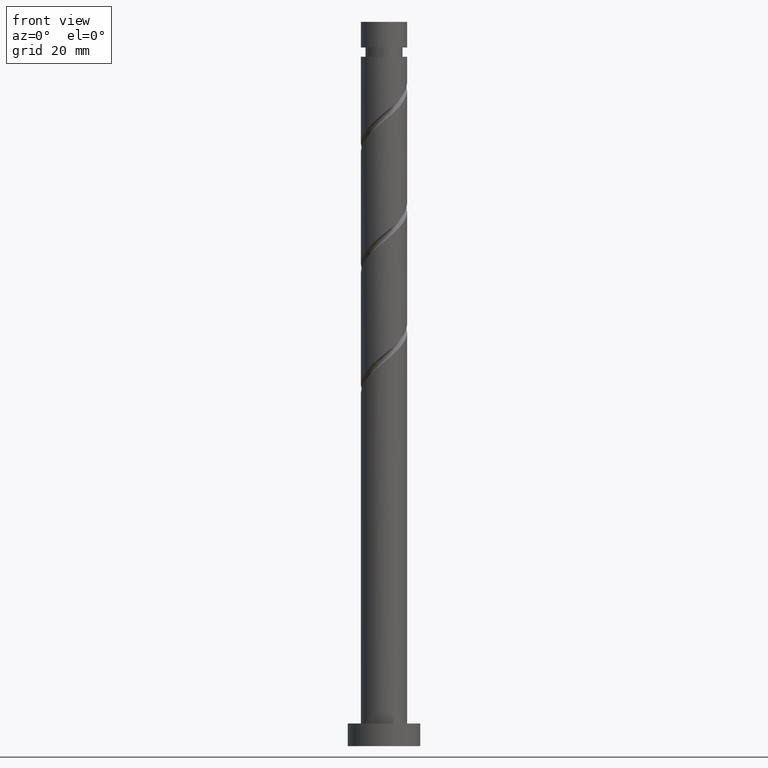
[diagram: clean part render]
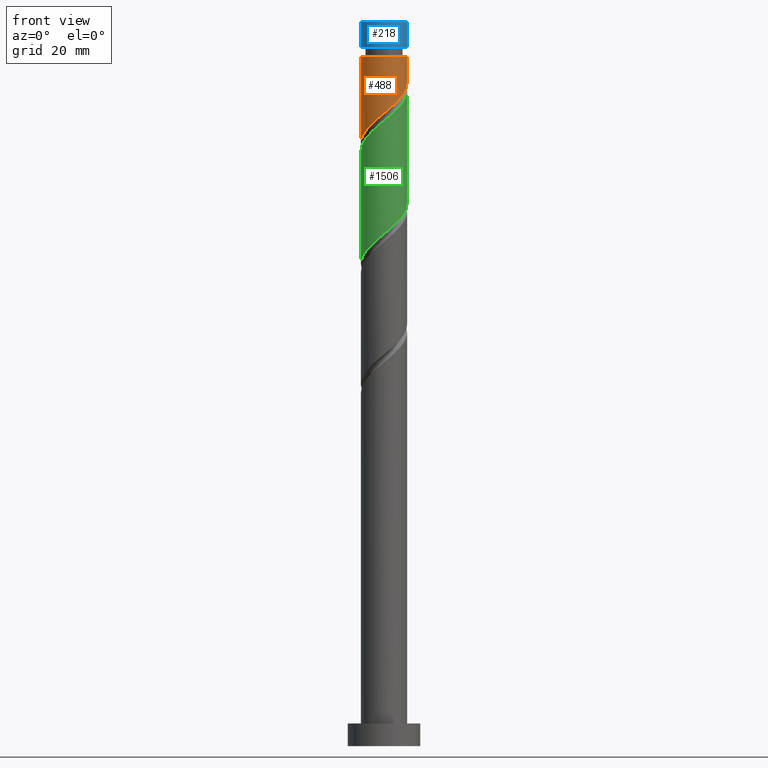
[diagram: same view with three faces highlighted in distinct colors, each labeled with its STEP entity id]
A machine part, front view with three faces highlighted in distinct colors.
Their STEP definitions:

[orange] entity #488 — the highlighted cylindrical surface (edge-blend (fillet) strip) has radius 5.1 mm, axis along (-0, -0, -1).
#104 = CARTESIAN_POINT ( 'NONE',  ( -3.030261786617840070, -4.167156988879664681, 137.1546469592131814 ) ) ;
#131 = CARTESIAN_POINT ( 'NONE',  ( 5.099999999999998757, 1.166632014872727961E-15, 146.4889499233624406 ) ) ;
#178 = CYLINDRICAL_SURFACE ( 'NONE', #500, 5.099999999999999645 ) ;
#203 = DIRECTION ( 'NONE',  ( -0.000000000000000000, -0.000000000000000000, -1.000000000000000000 ) ) ;
#226 = LINE ( 'NONE', #736, #767 ) ;
#229 = CARTESIAN_POINT ( 'NONE',  ( 2.531763087263165790, -4.487522650124081913, 142.0031318076979687 ) ) ;
#262 = CARTESIAN_POINT ( 'NONE',  ( -2.381876442926734061, -4.509619120350484067, 137.7607075652736910 ) ) ;
#296 = DIRECTION ( 'NONE',  ( -1.000000000000000000, 0.000000000000000000, 0.000000000000000000 ) ) ;
#306 = EDGE_CURVE ( 'NONE', #934, #813, #1345, .T. ) ;
#325 = EDGE_CURVE ( 'NONE', #1008, #1618, #640, .T. ) ;
#334 = CARTESIAN_POINT ( 'NONE',  ( 5.099999999999993427, 6.245698675651496895E-16, 152.3061621107282804 ) ) ;
#349 = CARTESIAN_POINT ( 'NONE',  ( -4.967940086286689372, -1.153070379060094242, 134.1243439289100650 ) ) ;
#479 = CARTESIAN_POINT ( 'NONE',  ( -4.802153594329291231, -1.867352329335635774, 134.7304045349707451 ) ) ;
#488 = ADVANCED_FACE ( 'NONE', ( #912 ), #178, .T. ) ;
#500 = AXIS2_PLACEMENT_3D ( 'NONE', #927, #1068, #296 ) ;
#568 = CARTESIAN_POINT ( 'NONE',  ( -5.099999999999999645, 0.000000000000000000, 160.0000000000000000 ) ) ;
#600 = ORIENTED_EDGE ( 'NONE', *, *, #306, .F. ) ;
#612 = CARTESIAN_POINT ( 'NONE',  ( 1.848345375122717460, -4.753274594872723746, 141.3970712016373454 ) ) ;
#616 = DIRECTION ( 'NONE',  ( -0.000000000000000000, -0.000000000000000000, -1.000000000000000000 ) ) ;
#635 = CARTESIAN_POINT ( 'NONE',  ( 4.802694060801206533, -1.715846659333174262, 145.0334348380009430 ) ) ;
#640 = CIRCLE ( 'NONE', #1041, 5.099999999999993427 ) ;
#736 = CARTESIAN_POINT ( 'NONE',  ( 5.099999999999999645, 6.245698675651500839E-16, 160.0000000000000000 ) ) ;
#749 = CARTESIAN_POINT ( 'NONE',  ( -1.014887185848753592, -4.997999999999999332, 138.9728287773949376 ) ) ;
#762 = CARTESIAN_POINT ( 'NONE',  ( -5.099999999999998757, -2.348220850448952543E-15, 133.1556165900291546 ) ) ;
#767 = VECTOR ( 'NONE', #616, 1000.000000000000000 ) ;
#771 = CARTESIAN_POINT ( 'NONE',  ( -3.555900236163435313, -3.655895719307761471, 136.5485863531525013 ) ) ;
#813 = VERTEX_POINT ( 'NONE', #1364 ) ;
#816 = EDGE_CURVE ( 'NONE', #1008, #934, #226, .T. ) ;
#840 = ORIENTED_EDGE ( 'NONE', *, *, #816, .F. ) ;
#869 = CARTESIAN_POINT ( 'NONE',  ( 4.124741339277075092, -2.999418090906761147, 143.8213136258797533 ) ) ;
#876 = CARTESIAN_POINT ( 'NONE',  ( -5.100000000000000533, -0.5840975296641275349, 133.6415765430004683 ) ) ;
#882 = CARTESIAN_POINT ( 'NONE',  ( 3.693490123188842400, -3.592466363838560550, 143.2152530198191869 ) ) ;
#912 = FACE_OUTER_BOUND ( 'NONE', #1513, .T. ) ;
#927 = CARTESIAN_POINT ( 'NONE',  ( 0.000000000000000000, 0.000000000000000000, 160.0000000000000000 ) ) ;
#934 = VERTEX_POINT ( 'NONE', #1206 ) ;
#950 = LINE ( 'NONE', #568, #1220 ) ;
#967 = CARTESIAN_POINT ( 'NONE',  ( 5.091561072240594399, -0.2932675359534172022, 146.2455560501221896 ) ) ;
#1003 = DIRECTION ( 'NONE',  ( -1.000000000000000000, 0.000000000000000000, 0.000000000000000000 ) ) ;
#1008 = VERTEX_POINT ( 'NONE', #334 ) ;
#1041 = AXIS2_PLACEMENT_3D ( 'NONE', #1257, #1253, #1003 ) ;
#1068 = DIRECTION ( 'NONE',  ( -0.000000000000000000, -0.000000000000000000, -1.000000000000000000 ) ) ;
#1092 = CARTESIAN_POINT ( 'NONE',  ( -0.2962832724618777447, -5.143918748178693434, 139.5788893834556177 ) ) ;
#1115 = CARTESIAN_POINT ( 'NONE',  ( -1.733491099235629829, -4.852081251821307895, 138.3667681713343711 ) ) ;
#1127 = CARTESIAN_POINT ( 'NONE',  ( 5.049395566237104838, -1.025323500691386558, 145.6394954440616232 ) ) ;
#1206 = CARTESIAN_POINT ( 'NONE',  ( 5.099999999999998757, 1.166632014872727961E-15, 146.4889499233624690 ) ) ;
#1220 = VECTOR ( 'NONE', #203, 1000.000000000000000 ) ;
#1242 = CARTESIAN_POINT ( 'NONE',  ( 4.555992555365308228, -2.406369817974962633, 144.4273742319403766 ) ) ;
#1253 = DIRECTION ( 'NONE',  ( -0.000000000000000000, -0.000000000000000000, -1.000000000000000000 ) ) ;
#1257 = CARTESIAN_POINT ( 'NONE',  ( 0.000000000000000000, 0.000000000000000000, 152.3061621107282804 ) ) ;
#1273 = CARTESIAN_POINT ( 'NONE',  ( -4.441846140019162448, -2.505993389535748239, 135.3364651410312547 ) ) ;
#1293 = ORIENTED_EDGE ( 'NONE', *, *, #1432, .T. ) ;
#1345 =( BOUNDED_CURVE ( )  B_SPLINE_CURVE ( 2, ( #131, #1536, #967, #1127, #635, #1242, #869, #882, #1366, #229, #612, #1655, #1497, #1092, #749, #1115, #262, #104, #771, #1377, #1273, #479, #349, #876, #762 ),
 .UNSPECIFIED., .F., .T. ) 
 B_SPLINE_CURVE_WITH_KNOTS ( ( 3, 2, 2, 2, 2, 2, 2, 2, 2, 2, 2, 2, 3 ),
 ( 0.3045252162417512176, 0.3068181818181818232, 0.3181818181818181768, 0.3295454545454545303, 0.3409090909090908839, 0.3522727272727272929, 0.3636363636363636465, 0.3750000000000000000, 0.3863636363636363535, 0.3977272727272727071, 0.4090909090909091161, 0.4204545454545454697, 0.4295252162417513286 ),
 .UNSPECIFIED. ) 
 CURVE ( )  GEOMETRIC_REPRESENTATION_ITEM ( )  RATIONAL_B_SPLINE_CURVE ( ( 0.9061101570135543515, 0.9072237824201365708, 0.9090909090909141677, 0.8998376744372164060, 0.9090909090909141677, 0.8998376744372164060, 0.9090909090909141677, 0.8998376744372164060, 0.9090909090909141677, 0.8998376744372164060, 0.9090909090909141677, 0.8998376744372164060, 0.9090909090909141677, 0.8998376744372164060, 0.9090909090909141677, 0.8998376744372164060, 0.9090909090909141677, 0.8998376744372164060, 0.9090909090909141677, 0.8998376744372164060, 0.9090909090909141677, 0.8998376744372164060, 0.9090909090909141677, 0.9017048011079938918, 0.9061101570135544625 ) ) 
 REPRESENTATION_ITEM ( '' )  );
#1364 = CARTESIAN_POINT ( 'NONE',  ( -5.099999999999998757, -2.348220850448952543E-15, 133.1556165900291546 ) ) ;
#1366 = CARTESIAN_POINT ( 'NONE',  ( 3.112626605226001431, -4.039994506981321010, 142.6091924137585636 ) ) ;
#1374 = ORIENTED_EDGE ( 'NONE', *, *, #325, .T. ) ;
#1377 = CARTESIAN_POINT ( 'NONE',  ( -4.081538685709034553, -3.144634449735860038, 135.9425257470919348 ) ) ;
#1432 = EDGE_CURVE ( 'NONE', #1618, #813, #950, .T. ) ;
#1497 = CARTESIAN_POINT ( 'NONE',  ( 0.4343221952601947766, -5.081472643900029951, 140.1849499895161273 ) ) ;
#1513 = EDGE_LOOP ( 'NONE', ( #840, #1374, #1293, #600 ) ) ;
#1536 = CARTESIAN_POINT ( 'NONE',  ( 5.099999999999998757, -0.1467551852714875371, 146.3668519186442438 ) ) ;
#1618 = VERTEX_POINT ( 'NONE', #1629 ) ;
#1629 = CARTESIAN_POINT ( 'NONE',  ( -5.099999999999993427, 0.000000000000000000, 152.3061621107282804 ) ) ;
#1655 = CARTESIAN_POINT ( 'NONE',  ( 1.164927662982270240, -5.019026539621367355, 140.7910105955768074 ) ) ;

[blue] entity #218 — the highlighted cylindrical surface (edge-blend (fillet) strip) has radius 5.1 mm, axis along (-0, -0, -1).
#26 = EDGE_CURVE ( 'NONE', #690, #1326, #578, .T. ) ;
#44 = CARTESIAN_POINT ( 'NONE',  ( 0.000000000000000000, 0.000000000000000000, 160.0000000000000000 ) ) ;
#56 = ORIENTED_EDGE ( 'NONE', *, *, #1542, .F. ) ;
#76 = CARTESIAN_POINT ( 'NONE',  ( -5.099999999999993427, 0.000000000000000000, 154.3461621107283008 ) ) ;
#100 = VECTOR ( 'NONE', #305, 1000.000000000000000 ) ;
#218 = ADVANCED_FACE ( 'NONE', ( #1182 ), #925, .T. ) ;
#228 = DIRECTION ( 'NONE',  ( -1.000000000000000000, 0.000000000000000000, 0.000000000000000000 ) ) ;
#291 = VECTOR ( 'NONE', #562, 1000.000000000000000 ) ;
#305 = DIRECTION ( 'NONE',  ( -0.000000000000000000, -0.000000000000000000, -1.000000000000000000 ) ) ;
#320 = CARTESIAN_POINT ( 'NONE',  ( 5.099999999999993427, 6.245698675651496895E-16, 154.3461621107283008 ) ) ;
#347 = ORIENTED_EDGE ( 'NONE', *, *, #26, .F. ) ;
#422 = AXIS2_PLACEMENT_3D ( 'NONE', #1365, #634, #228 ) ;
#522 = EDGE_CURVE ( 'NONE', #1326, #617, #1453, .T. ) ;
#555 = DIRECTION ( 'NONE',  ( -0.000000000000000000, -0.000000000000000000, -1.000000000000000000 ) ) ;
#562 = DIRECTION ( 'NONE',  ( -0.000000000000000000, -0.000000000000000000, -1.000000000000000000 ) ) ;
#578 = CIRCLE ( 'NONE', #1568, 5.099999999999999645 ) ;
#617 = VERTEX_POINT ( 'NONE', #320 ) ;
#634 = DIRECTION ( 'NONE',  ( -0.000000000000000000, -0.000000000000000000, -1.000000000000000000 ) ) ;
#638 = CIRCLE ( 'NONE', #422, 5.099999999999993427 ) ;
#658 = CARTESIAN_POINT ( 'NONE',  ( 5.099999999999999645, 6.245698675651500839E-16, 160.0000000000000000 ) ) ;
#670 = CARTESIAN_POINT ( 'NONE',  ( -5.099999999999999645, 0.000000000000000000, 160.0000000000000000 ) ) ;
#690 = VERTEX_POINT ( 'NONE', #1511 ) ;
#708 = VERTEX_POINT ( 'NONE', #76 ) ;
#710 = AXIS2_PLACEMENT_3D ( 'NONE', #44, #555, #785 ) ;
#735 = DIRECTION ( 'NONE',  ( 0.000000000000000000, 0.000000000000000000, 1.000000000000000000 ) ) ;
#779 = LINE ( 'NONE', #670, #291 ) ;
#785 = DIRECTION ( 'NONE',  ( -1.000000000000000000, 0.000000000000000000, 0.000000000000000000 ) ) ;
#837 = DIRECTION ( 'NONE',  ( 1.000000000000000000, 0.000000000000000000, 0.000000000000000000 ) ) ;
#925 = CYLINDRICAL_SURFACE ( 'NONE', #710, 5.099999999999999645 ) ;
#999 = ORIENTED_EDGE ( 'NONE', *, *, #522, .F. ) ;
#1085 = CARTESIAN_POINT ( 'NONE',  ( 0.000000000000000000, 0.000000000000000000, 160.0000000000000000 ) ) ;
#1182 = FACE_OUTER_BOUND ( 'NONE', #1318, .T. ) ;
#1318 = EDGE_LOOP ( 'NONE', ( #999, #347, #1459, #56 ) ) ;
#1326 = VERTEX_POINT ( 'NONE', #658 ) ;
#1358 = EDGE_CURVE ( 'NONE', #690, #708, #779, .T. ) ;
#1365 = CARTESIAN_POINT ( 'NONE',  ( 0.000000000000000000, 0.000000000000000000, 154.3461621107283008 ) ) ;
#1453 = LINE ( 'NONE', #1587, #100 ) ;
#1459 = ORIENTED_EDGE ( 'NONE', *, *, #1358, .T. ) ;
#1511 = CARTESIAN_POINT ( 'NONE',  ( -5.099999999999999645, 0.000000000000000000, 160.0000000000000000 ) ) ;
#1542 = EDGE_CURVE ( 'NONE', #617, #708, #638, .T. ) ;
#1568 = AXIS2_PLACEMENT_3D ( 'NONE', #1085, #735, #837 ) ;
#1587 = CARTESIAN_POINT ( 'NONE',  ( 5.099999999999999645, 6.245698675651500839E-16, 160.0000000000000000 ) ) ;

[green] entity #1506 — the highlighted cylindrical surface (edge-blend (fillet) strip) has radius 5.1 mm, axis along (-0, -0, -1).
#70 = ORIENTED_EDGE ( 'NONE', *, *, #1161, .F. ) ;
#72 = CARTESIAN_POINT ( 'NONE',  ( 5.100000000000005862, 3.305457375472709863E-15, 144.7900409647607489 ) ) ;
#82 = DIRECTION ( 'NONE',  ( -0.000000000000000000, -0.000000000000000000, -1.000000000000000000 ) ) ;
#134 = CARTESIAN_POINT ( 'NONE',  ( 0.4343221952601947766, -5.081472643900029951, 113.5182833228494985 ) ) ;
#168 = CARTESIAN_POINT ( 'NONE',  ( -1.164927662982270684, -5.019026539621372685, 137.1546469592131245 ) ) ;
#184 = CARTESIAN_POINT ( 'NONE',  ( -0.4343221952601974967, -5.081472643900035280, 137.7607075652736910 ) ) ;
#189 = AXIS2_PLACEMENT_3D ( 'NONE', #237, #983, #1240 ) ;
#190 = EDGE_CURVE ( 'NONE', #1102, #1417, #921, .T. ) ;
#194 = CARTESIAN_POINT ( 'NONE',  ( -5.091561072240601504, -0.2932675359534157589, 131.7001015046676855 ) ) ;
#225 = CARTESIAN_POINT ( 'NONE',  ( 2.531763087263165790, -4.487522650124081913, 115.3364651410313257 ) ) ;
#237 = CARTESIAN_POINT ( 'NONE',  ( 0.000000000000000000, 0.000000000000000000, 160.0000000000000000 ) ) ;
#240 = CARTESIAN_POINT ( 'NONE',  ( 1.848345375122717460, -4.753274594872723746, 114.7304045349706882 ) ) ;
#254 = CARTESIAN_POINT ( 'NONE',  ( 3.693490123188842400, -3.592466363838560550, 116.5485863531525013 ) ) ;
#351 = CARTESIAN_POINT ( 'NONE',  ( -5.100000000000002309, -0.5840975296641168768, 106.9749098763338111 ) ) ;
#386 = CARTESIAN_POINT ( 'NONE',  ( -2.381876442926734061, -4.509619120350484067, 111.0940408986070480 ) ) ;
#432 = CARTESIAN_POINT ( 'NONE',  ( 0.2962832724618759683, -5.143918748178697875, 138.3667681713343143 ) ) ;
#481 = CARTESIAN_POINT ( 'NONE',  ( -5.099999999999999645, 0.000000000000000000, 160.0000000000000000 ) ) ;
#490 = CARTESIAN_POINT ( 'NONE',  ( 5.099999999999997868, -5.892987357177625303E-15, 119.8222832566958118 ) ) ;
#501 = ORIENTED_EDGE ( 'NONE', *, *, #190, .F. ) ;
#532 = CARTESIAN_POINT ( 'NONE',  ( -4.555992555365313557, -2.406369817974963965, 133.5182833228494985 ) ) ;
#543 = CARTESIAN_POINT ( 'NONE',  ( 5.100000000000007638, -0.5840975296641242043, 144.3040810117894353 ) ) ;
#572 = CARTESIAN_POINT ( 'NONE',  ( 4.081538685709036329, -3.144634449735864923, 142.0031318076979687 ) ) ;
#614 = LINE ( 'NONE', #481, #1350 ) ;
#627 = CYLINDRICAL_SURFACE ( 'NONE', #189, 5.099999999999999645 ) ;
#629 = CARTESIAN_POINT ( 'NONE',  ( -3.030261786617840070, -4.167156988879664681, 110.4879802925464674 ) ) ;
#644 = CARTESIAN_POINT ( 'NONE',  ( 5.049395566237104838, -1.025323500691386558, 118.9728287773949802 ) ) ;
#663 = CARTESIAN_POINT ( 'NONE',  ( 1.733491099235630051, -4.852081251821313224, 139.5788893834555040 ) ) ;
#673 = CARTESIAN_POINT ( 'NONE',  ( -1.848345375122721013, -4.753274594872729075, 136.5485863531525297 ) ) ;
#679 = CARTESIAN_POINT ( 'NONE',  ( 2.381876442926735837, -4.509619120350491173, 140.1849499895161557 ) ) ;
#688 = CARTESIAN_POINT ( 'NONE',  ( 1.014887185848752926, -4.998000000000005549, 138.9728287773949376 ) ) ;
#699 = CARTESIAN_POINT ( 'NONE',  ( 4.441846140019166889, -2.505993389535752236, 142.6091924137585352 ) ) ;
#724 = EDGE_CURVE ( 'NONE', #1417, #1185, #956, .T. ) ;
#751 = CARTESIAN_POINT ( 'NONE',  ( 4.124741339277075092, -2.999418090906761147, 117.1546469592131103 ) ) ;
#764 = CARTESIAN_POINT ( 'NONE',  ( -4.441846140019162448, -2.505993389535748239, 108.6697984743646117 ) ) ;
#788 = CARTESIAN_POINT ( 'NONE',  ( -5.049395566237108390, -1.025323500691385892, 132.3061621107282804 ) ) ;
#798 = CARTESIAN_POINT ( 'NONE',  ( -4.802694060801213638, -1.715846659333174928, 132.9122227167888752 ) ) ;
#812 = CARTESIAN_POINT ( 'NONE',  ( -3.112626605226007204, -4.039994506981324562, 135.3364651410312831 ) ) ;
#826 = ORIENTED_EDGE ( 'NONE', *, *, #724, .F. ) ;
#858 = CARTESIAN_POINT ( 'NONE',  ( 5.099999999999998757, -0.1467551852714982230, 119.7001852519775724 ) ) ;
#874 = EDGE_LOOP ( 'NONE', ( #826, #501, #1073, #70 ) ) ;
#910 = CARTESIAN_POINT ( 'NONE',  ( -5.100000000000005862, -0.1467551852714905902, 131.5788056361456029 ) ) ;
#921 =( BOUNDED_CURVE ( )  B_SPLINE_CURVE ( 2, ( #1308, #910, #194, #788, #798, #532, #1422, #1299, #812, #1047, #673, #168, #184, #432, #688, #663, #679, #1431, #1031, #572, #699, #1200, #1055, #543, #1598 ),
 .UNSPECIFIED., .F., .T. ) 
 B_SPLINE_CURVE_WITH_KNOTS ( ( 3, 2, 2, 2, 2, 2, 2, 2, 2, 2, 2, 2, 3 ),
 ( 0.5545252162417513286, 0.5568181818181818787, 0.5681818181818181213, 0.5795454545454545858, 0.5909090909090908283, 0.6022727272727272929, 0.6136363636363636465, 0.6250000000000000000, 0.6363636363636363535, 0.6477272727272727071, 0.6590909090909091717, 0.6704545454545454142, 0.6795252162417514397 ),
 .UNSPECIFIED. ) 
 CURVE ( )  GEOMETRIC_REPRESENTATION_ITEM ( )  RATIONAL_B_SPLINE_CURVE ( ( 0.9061101570135599026, 0.9072237824201420109, 0.9090909090909194967, 0.8998376744372218461, 0.9090909090909194967, 0.8998376744372218461, 0.9090909090909194967, 0.8998376744372218461, 0.9090909090909194967, 0.8998376744372218461, 0.9090909090909194967, 0.8998376744372218461, 0.9090909090909194967, 0.8998376744372218461, 0.9090909090909194967, 0.8998376744372218461, 0.9090909090909194967, 0.8998376744372218461, 0.9090909090909194967, 0.8998376744372218461, 0.9090909090909194967, 0.8998376744372218461, 0.9090909090909194967, 0.9017048011079992209, 0.9061101570135600136 ) ) 
 REPRESENTATION_ITEM ( '' )  );
#956 = LINE ( 'NONE', #1355, #1628 ) ;
#983 = DIRECTION ( 'NONE',  ( -0.000000000000000000, -0.000000000000000000, -1.000000000000000000 ) ) ;
#1005 = CARTESIAN_POINT ( 'NONE',  ( -0.2962832724618777447, -5.143918748178693434, 112.9122227167888894 ) ) ;
#1031 = CARTESIAN_POINT ( 'NONE',  ( 3.555900236163439310, -3.655895719307768132, 141.3970712016373170 ) ) ;
#1047 = CARTESIAN_POINT ( 'NONE',  ( -2.531763087263170231, -4.487522650124083690, 135.9425257470919064 ) ) ;
#1055 = CARTESIAN_POINT ( 'NONE',  ( 4.967940086286696477, -1.153070379060097128, 143.8213136258797533 ) ) ;
#1069 = EDGE_CURVE ( 'NONE', #1102, #1302, #614, .T. ) ;
#1073 = ORIENTED_EDGE ( 'NONE', *, *, #1069, .T. ) ;
#1076 = FACE_OUTER_BOUND ( 'NONE', #874, .T. ) ;
#1094 = CARTESIAN_POINT ( 'NONE',  ( -5.099999999999997868, 4.771225804415387797E-15, 106.4889499233624832 ) ) ;
#1102 = VERTEX_POINT ( 'NONE', #1107 ) ;
#1107 = CARTESIAN_POINT ( 'NONE',  ( -5.100000000000005862, -3.544766506728652250E-15, 131.4567076314274061 ) ) ;
#1116 = CARTESIAN_POINT ( 'NONE',  ( -3.555900236163435313, -3.655895719307761471, 109.8819196864858441 ) ) ;
#1137 = CARTESIAN_POINT ( 'NONE',  ( 4.555992555365308228, -2.406369817974962633, 117.7607075652737336 ) ) ;
#1161 = EDGE_CURVE ( 'NONE', #1185, #1302, #1166, .T. ) ;
#1166 =( BOUNDED_CURVE ( )  B_SPLINE_CURVE ( 2, ( #1361, #858, #1379, #644, #1368, #1137, #751, #254, #1641, #225, #240, #1254, #134, #1005, #1518, #1538, #386, #629, #1116, #1648, #764, #1266, #1243, #351, #1094 ),
 .UNSPECIFIED., .F., .T. ) 
 B_SPLINE_CURVE_WITH_KNOTS ( ( 3, 2, 2, 2, 2, 2, 2, 2, 2, 2, 2, 2, 3 ),
 ( 0.5545252162417513286, 0.5568181818181817677, 0.5681818181818182323, 0.5795454545454545858, 0.5909090909090909394, 0.6022727272727272929, 0.6136363636363636465, 0.6250000000000000000, 0.6363636363636363535, 0.6477272727272727071, 0.6590909090909090606, 0.6704545454545454142, 0.6795252162417514397 ),
 .UNSPECIFIED. ) 
 CURVE ( )  GEOMETRIC_REPRESENTATION_ITEM ( )  RATIONAL_B_SPLINE_CURVE ( ( 0.9061101570135544625, 0.9072237824201366818, 0.9090909090909141677, 0.8998376744372164060, 0.9090909090909141677, 0.8998376744372164060, 0.9090909090909141677, 0.8998376744372164060, 0.9090909090909141677, 0.8998376744372164060, 0.9090909090909141677, 0.8998376744372164060, 0.9090909090909141677, 0.8998376744372164060, 0.9090909090909141677, 0.8998376744372164060, 0.9090909090909141677, 0.8998376744372164060, 0.9090909090909141677, 0.8998376744372164060, 0.9090909090909141677, 0.8998376744372164060, 0.9090909090909141677, 0.9017048011079937808, 0.9061101570135546845 ) ) 
 REPRESENTATION_ITEM ( '' )  );
#1167 = CARTESIAN_POINT ( 'NONE',  ( -5.099999999999997868, 4.771225804415387008E-15, 106.4889499233624832 ) ) ;
#1185 = VERTEX_POINT ( 'NONE', #490 ) ;
#1200 = CARTESIAN_POINT ( 'NONE',  ( 4.802153594329298336, -1.867352329335637995, 143.2152530198191869 ) ) ;
#1240 = DIRECTION ( 'NONE',  ( -1.000000000000000000, 0.000000000000000000, 0.000000000000000000 ) ) ;
#1243 = CARTESIAN_POINT ( 'NONE',  ( -4.967940086286689372, -1.153070379060094242, 107.4576772622434504 ) ) ;
#1254 = CARTESIAN_POINT ( 'NONE',  ( 1.164927662982270240, -5.019026539621367355, 114.1243439289101218 ) ) ;
#1266 = CARTESIAN_POINT ( 'NONE',  ( -4.802153594329291231, -1.867352329335635774, 108.0637378683040595 ) ) ;
#1299 = CARTESIAN_POINT ( 'NONE',  ( -3.693490123188845509, -3.592466363838564103, 134.7304045349707451 ) ) ;
#1302 = VERTEX_POINT ( 'NONE', #1167 ) ;
#1308 = CARTESIAN_POINT ( 'NONE',  ( -5.100000000000005862, -3.544766506728652250E-15, 131.4567076314274061 ) ) ;
#1350 = VECTOR ( 'NONE', #1528, 1000.000000000000000 ) ;
#1355 = CARTESIAN_POINT ( 'NONE',  ( 5.099999999999999645, 6.245698675651500839E-16, 160.0000000000000000 ) ) ;
#1361 = CARTESIAN_POINT ( 'NONE',  ( 5.099999999999997868, -5.892987357177625303E-15, 119.8222832566958118 ) ) ;
#1368 = CARTESIAN_POINT ( 'NONE',  ( 4.802694060801206533, -1.715846659333174262, 118.3667681713343427 ) ) ;
#1379 = CARTESIAN_POINT ( 'NONE',  ( 5.091561072240594399, -0.2932675359534172022, 119.5788893834555040 ) ) ;
#1417 = VERTEX_POINT ( 'NONE', #72 ) ;
#1422 = CARTESIAN_POINT ( 'NONE',  ( -4.124741339277079533, -2.999418090906764256, 134.1243439289100934 ) ) ;
#1431 = CARTESIAN_POINT ( 'NONE',  ( 3.030261786617843178, -4.167156988879668233, 140.7910105955767790 ) ) ;
#1506 = ADVANCED_FACE ( 'NONE', ( #1076 ), #627, .T. ) ;
#1518 = CARTESIAN_POINT ( 'NONE',  ( -1.014887185848753592, -4.997999999999999332, 112.3061621107282662 ) ) ;
#1528 = DIRECTION ( 'NONE',  ( -0.000000000000000000, -0.000000000000000000, -1.000000000000000000 ) ) ;
#1538 = CARTESIAN_POINT ( 'NONE',  ( -1.733491099235629829, -4.852081251821307895, 111.7001015046676855 ) ) ;
#1598 = CARTESIAN_POINT ( 'NONE',  ( 5.100000000000005862, 3.305457375472709863E-15, 144.7900409647607773 ) ) ;
#1628 = VECTOR ( 'NONE', #82, 1000.000000000000000 ) ;
#1641 = CARTESIAN_POINT ( 'NONE',  ( 3.112626605226001431, -4.039994506981321010, 115.9425257470919064 ) ) ;
#1648 = CARTESIAN_POINT ( 'NONE',  ( -4.081538685709034553, -3.144634449735860038, 109.2758590804252492 ) ) ;